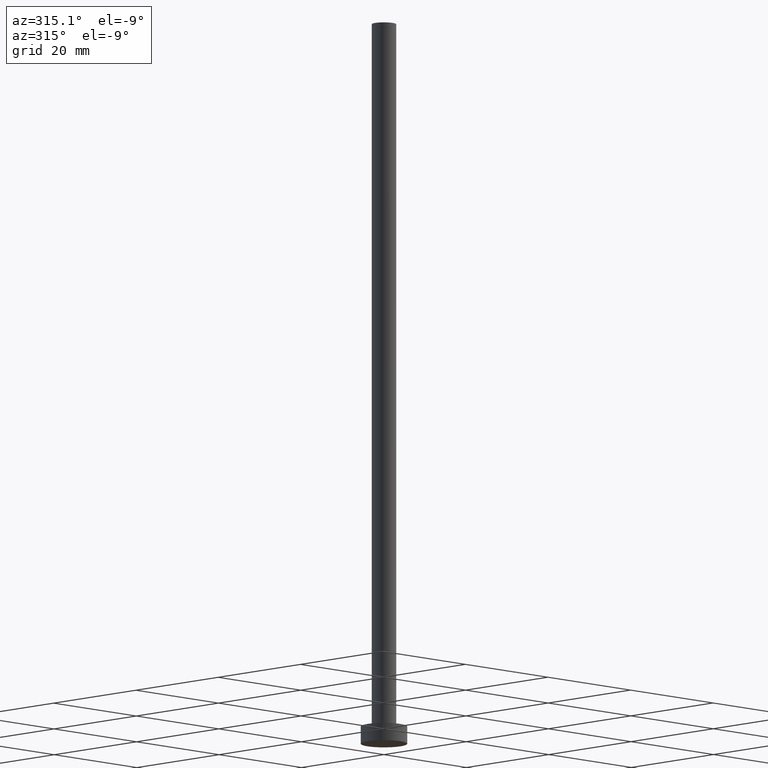
[diagram: clean part render]
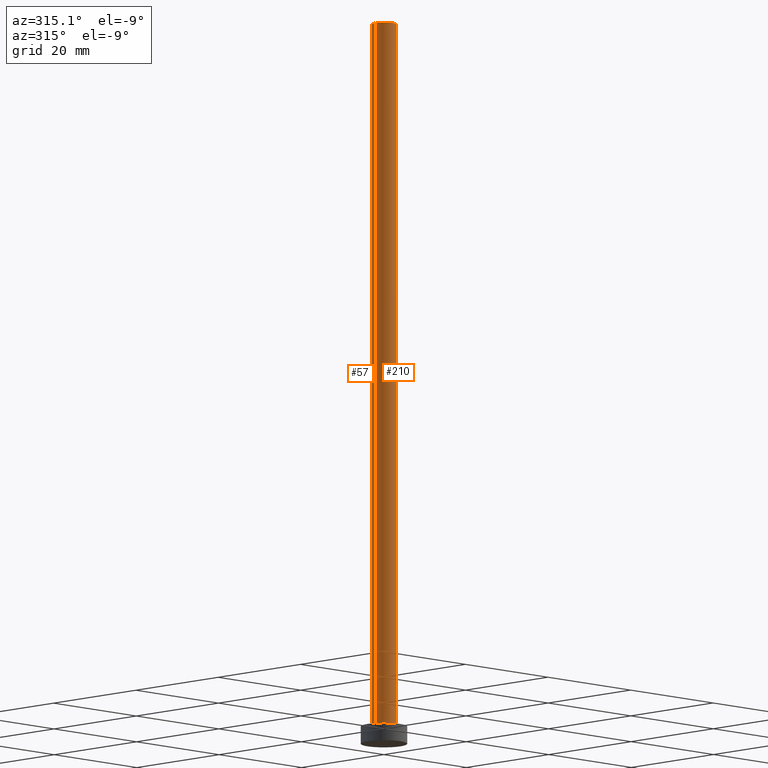
[diagram: same view with one multi-face feature highlighted, each face labeled with its STEP entity id]
A machine part, auxiliary view. The highlighted faces form ONE feature: a constant-radius fillet chain: 2 tangent blend faces with common blend radius 2.1 mm. The faces share edges in the B-rep.
Their STEP definitions:
[1] entity #57 (Cylinder):
#11 = EDGE_CURVE ( 'NONE', #220, #62, #156, .T. ) ;
#22 = EDGE_LOOP ( 'NONE', ( #123, #76, #141, #238 ) ) ;
#27 = DIRECTION ( 'NONE',  ( -0.000000000000000000, -0.000000000000000000, -1.000000000000000000 ) ) ;
#32 = DIRECTION ( 'NONE',  ( 1.000000000000000000, 0.000000000000000000, 0.000000000000000000 ) ) ;
#35 = AXIS2_PLACEMENT_3D ( 'NONE', #71, #51, #32 ) ;
#51 = DIRECTION ( 'NONE',  ( 0.000000000000000000, 0.000000000000000000, 1.000000000000000000 ) ) ;
#52 = EDGE_CURVE ( 'NONE', #120, #220, #130, .T. ) ;
#57 = ADVANCED_FACE ( 'NONE', ( #245 ), #226, .T. ) ;
#62 = VERTEX_POINT ( 'NONE', #106 ) ;
#71 = CARTESIAN_POINT ( 'NONE',  ( 0.000000000000000000, 0.000000000000000000, 3.000000000000000000 ) ) ;
#76 = ORIENTED_EDGE ( 'NONE', *, *, #52, .T. ) ;
#78 = VECTOR ( 'NONE', #27, 1000.000000000000000 ) ;
#80 = DIRECTION ( 'NONE',  ( -1.000000000000000000, 0.000000000000000000, 0.000000000000000000 ) ) ;
#84 = CARTESIAN_POINT ( 'NONE',  ( -2.100000000000000089, 0.000000000000000000, 125.0000000000000000 ) ) ;
#86 = EDGE_CURVE ( 'NONE', #120, #158, #132, .T. ) ;
#103 = DIRECTION ( 'NONE',  ( 1.000000000000000000, 0.000000000000000000, 0.000000000000000000 ) ) ;
#106 = CARTESIAN_POINT ( 'NONE',  ( -2.100000000000000089, 0.000000000000000000, 3.000000000000000000 ) ) ;
#107 = DIRECTION ( 'NONE',  ( -0.000000000000000000, -0.000000000000000000, -1.000000000000000000 ) ) ;
#120 = VERTEX_POINT ( 'NONE', #244 ) ;
#123 = ORIENTED_EDGE ( 'NONE', *, *, #86, .F. ) ;
#126 = CARTESIAN_POINT ( 'NONE',  ( 0.000000000000000000, 0.000000000000000000, 125.0000000000000000 ) ) ;
#130 = LINE ( 'NONE', #224, #78 ) ;
#132 = CIRCLE ( 'NONE', #150, 2.100000000000000089 ) ;
#141 = ORIENTED_EDGE ( 'NONE', *, *, #11, .T. ) ;
#150 = AXIS2_PLACEMENT_3D ( 'NONE', #126, #203, #103 ) ;
#151 = VECTOR ( 'NONE', #252, 1000.000000000000000 ) ;
#156 = CIRCLE ( 'NONE', #35, 2.100000000000000089 ) ;
#158 = VERTEX_POINT ( 'NONE', #84 ) ;
#173 = CARTESIAN_POINT ( 'NONE',  ( 2.100000000000000089, 2.571758278209441464E-16, 3.000000000000000000 ) ) ;
#203 = DIRECTION ( 'NONE',  ( 0.000000000000000000, 0.000000000000000000, 1.000000000000000000 ) ) ;
#206 = EDGE_CURVE ( 'NONE', #158, #62, #232, .T. ) ;
#209 = CARTESIAN_POINT ( 'NONE',  ( 0.000000000000000000, 0.000000000000000000, 125.0000000000000000 ) ) ;
#220 = VERTEX_POINT ( 'NONE', #173 ) ;
#224 = CARTESIAN_POINT ( 'NONE',  ( 2.100000000000000089, 2.571758278209441464E-16, 125.0000000000000000 ) ) ;
#226 = CYLINDRICAL_SURFACE ( 'NONE', #237, 2.100000000000000089 ) ;
#232 = LINE ( 'NONE', #234, #151 ) ;
#234 = CARTESIAN_POINT ( 'NONE',  ( -2.100000000000000089, 0.000000000000000000, 125.0000000000000000 ) ) ;
#237 = AXIS2_PLACEMENT_3D ( 'NONE', #209, #107, #80 ) ;
#238 = ORIENTED_EDGE ( 'NONE', *, *, #206, .F. ) ;
#244 = CARTESIAN_POINT ( 'NONE',  ( 2.100000000000000089, 2.571758278209441464E-16, 125.0000000000000000 ) ) ;
#245 = FACE_OUTER_BOUND ( 'NONE', #22, .T. ) ;
#252 = DIRECTION ( 'NONE',  ( -0.000000000000000000, -0.000000000000000000, -1.000000000000000000 ) ) ;
[2] entity #210 (Cylinder):
#26 = CIRCLE ( 'NONE', #225, 2.100000000000000089 ) ;
#27 = DIRECTION ( 'NONE',  ( -0.000000000000000000, -0.000000000000000000, -1.000000000000000000 ) ) ;
#37 = DIRECTION ( 'NONE',  ( -0.000000000000000000, -0.000000000000000000, -1.000000000000000000 ) ) ;
#52 = EDGE_CURVE ( 'NONE', #120, #220, #130, .T. ) ;
#62 = VERTEX_POINT ( 'NONE', #106 ) ;
#67 = CARTESIAN_POINT ( 'NONE',  ( 0.000000000000000000, 0.000000000000000000, 3.000000000000000000 ) ) ;
#68 = EDGE_CURVE ( 'NONE', #62, #220, #26, .T. ) ;
#73 = EDGE_CURVE ( 'NONE', #158, #120, #219, .T. ) ;
#78 = VECTOR ( 'NONE', #27, 1000.000000000000000 ) ;
#84 = CARTESIAN_POINT ( 'NONE',  ( -2.100000000000000089, 0.000000000000000000, 125.0000000000000000 ) ) ;
#101 = DIRECTION ( 'NONE',  ( 0.000000000000000000, 0.000000000000000000, 1.000000000000000000 ) ) ;
#106 = CARTESIAN_POINT ( 'NONE',  ( -2.100000000000000089, 0.000000000000000000, 3.000000000000000000 ) ) ;
#116 = CARTESIAN_POINT ( 'NONE',  ( 0.000000000000000000, 0.000000000000000000, 125.0000000000000000 ) ) ;
#120 = VERTEX_POINT ( 'NONE', #244 ) ;
#130 = LINE ( 'NONE', #224, #78 ) ;
#148 = DIRECTION ( 'NONE',  ( 1.000000000000000000, 0.000000000000000000, 0.000000000000000000 ) ) ;
#149 = EDGE_LOOP ( 'NONE', ( #163, #217, #218, #250 ) ) ;
#151 = VECTOR ( 'NONE', #252, 1000.000000000000000 ) ;
#153 = CARTESIAN_POINT ( 'NONE',  ( 0.000000000000000000, 0.000000000000000000, 125.0000000000000000 ) ) ;
#158 = VERTEX_POINT ( 'NONE', #84 ) ;
#163 = ORIENTED_EDGE ( 'NONE', *, *, #52, .F. ) ;
#173 = CARTESIAN_POINT ( 'NONE',  ( 2.100000000000000089, 2.571758278209441464E-16, 3.000000000000000000 ) ) ;
#178 = FACE_OUTER_BOUND ( 'NONE', #149, .T. ) ;
#190 = DIRECTION ( 'NONE',  ( 0.000000000000000000, 0.000000000000000000, 1.000000000000000000 ) ) ;
#194 = DIRECTION ( 'NONE',  ( -1.000000000000000000, 0.000000000000000000, 0.000000000000000000 ) ) ;
#206 = EDGE_CURVE ( 'NONE', #158, #62, #232, .T. ) ;
#210 = ADVANCED_FACE ( 'NONE', ( #178 ), #239, .T. ) ;
#217 = ORIENTED_EDGE ( 'NONE', *, *, #73, .F. ) ;
#218 = ORIENTED_EDGE ( 'NONE', *, *, #206, .T. ) ;
#219 = CIRCLE ( 'NONE', #240, 2.100000000000000089 ) ;
#220 = VERTEX_POINT ( 'NONE', #173 ) ;
#224 = CARTESIAN_POINT ( 'NONE',  ( 2.100000000000000089, 2.571758278209441464E-16, 125.0000000000000000 ) ) ;
#225 = AXIS2_PLACEMENT_3D ( 'NONE', #67, #101, #148 ) ;
#231 = DIRECTION ( 'NONE',  ( 1.000000000000000000, 0.000000000000000000, 0.000000000000000000 ) ) ;
#232 = LINE ( 'NONE', #234, #151 ) ;
#234 = CARTESIAN_POINT ( 'NONE',  ( -2.100000000000000089, 0.000000000000000000, 125.0000000000000000 ) ) ;
#239 = CYLINDRICAL_SURFACE ( 'NONE', #253, 2.100000000000000089 ) ;
#240 = AXIS2_PLACEMENT_3D ( 'NONE', #153, #190, #231 ) ;
#244 = CARTESIAN_POINT ( 'NONE',  ( 2.100000000000000089, 2.571758278209441464E-16, 125.0000000000000000 ) ) ;
#250 = ORIENTED_EDGE ( 'NONE', *, *, #68, .T. ) ;
#252 = DIRECTION ( 'NONE',  ( -0.000000000000000000, -0.000000000000000000, -1.000000000000000000 ) ) ;
#253 = AXIS2_PLACEMENT_3D ( 'NONE', #116, #37, #194 ) ;